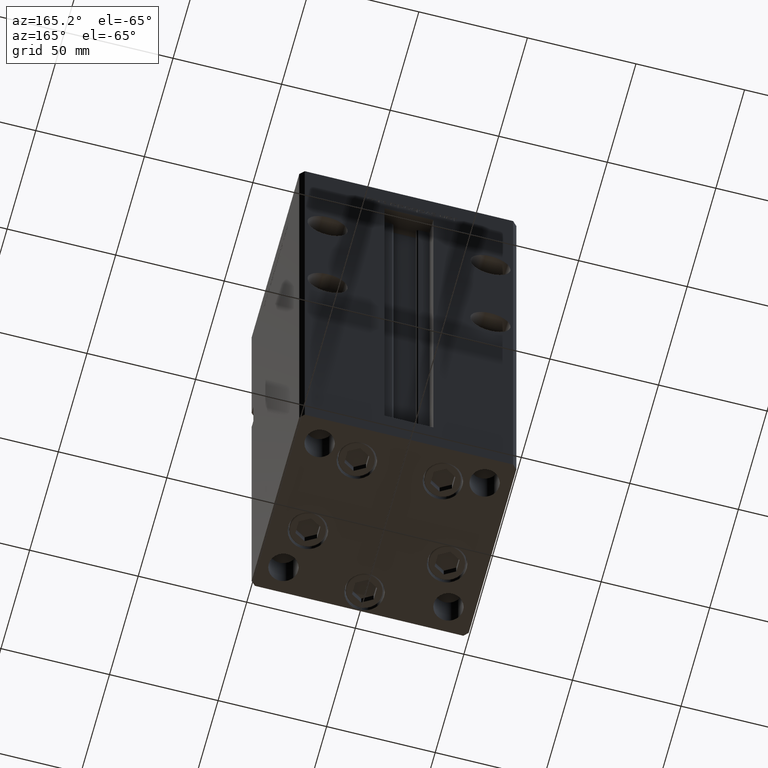
[diagram: clean part render]
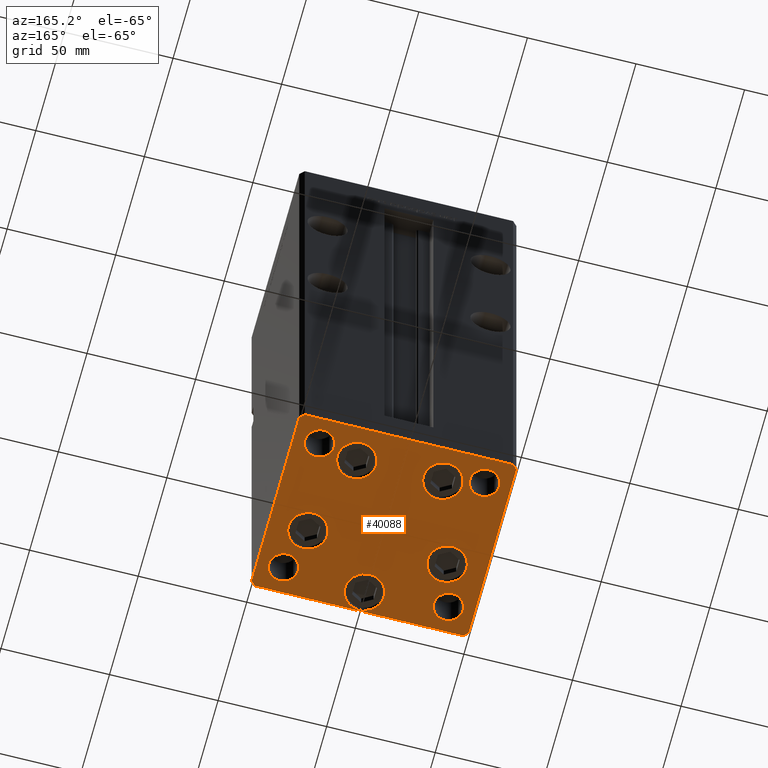
[diagram: same view with one face highlighted and labeled with its STEP entity id]
A machine part, auxiliary view. The second image highlights one B-rep face of the part: STEP entity #40088.
In plain terms, the highlighted planar face has unit normal (0, 0, -1).
Its self-contained STEP definition (entity closure, byte-faithful):
#40 = CARTESIAN_POINT ( 'NONE',  ( -38.00000000000000000, 31.50000000000000000, 0.000000000000000000 ) ) ;
#287 = DIRECTION ( 'NONE',  ( 0.000000000000000000, -0.000000000000000000, -1.000000000000000000 ) ) ;
#337 = VERTEX_POINT ( 'NONE', #47111 ) ;
#1115 = DIRECTION ( 'NONE',  ( 0.000000000000000000, -0.000000000000000000, -1.000000000000000000 ) ) ;
#1201 = AXIS2_PLACEMENT_3D ( 'NONE', #7482, #47867, #48141 ) ;
#1406 = CARTESIAN_POINT ( 'NONE',  ( -50.00000000000000711, 41.49999999999995026, 0.000000000000000000 ) ) ;
#1515 = DIRECTION ( 'NONE',  ( 1.000000000000000000, 0.000000000000000000, 0.000000000000000000 ) ) ;
#2008 = EDGE_CURVE ( 'NONE', #38507, #2152, #26803, .T. ) ;
#2152 = VERTEX_POINT ( 'NONE', #21083 ) ;
#2290 = CARTESIAN_POINT ( 'NONE',  ( 49.99999999999992184, 41.49999999999998579, 0.000000000000000000 ) ) ;
#2665 = EDGE_CURVE ( 'NONE', #52775, #21451, #28418, .T. ) ;
#2859 = AXIS2_PLACEMENT_3D ( 'NONE', #37668, #287, #49887 ) ;
#2884 = VERTEX_POINT ( 'NONE', #6444 ) ;
#3057 = FACE_BOUND ( 'NONE', #12705, .T. ) ;
#3117 = CARTESIAN_POINT ( 'NONE',  ( 41.05550741379015278, -11.33333333333332860, 0.000000000000000000 ) ) ;
#3433 = CARTESIAN_POINT ( 'NONE',  ( -31.25000000000000000, 31.50000000000000000, 0.000000000000000000 ) ) ;
#3553 = LINE ( 'NONE', #20090, #6071 ) ;
#3657 = CIRCLE ( 'NONE', #46042, 9.000000000000001776 ) ;
#3718 = DIRECTION ( 'NONE',  ( 1.000000000000000000, 0.000000000000000000, 0.000000000000000000 ) ) ;
#3827 = CARTESIAN_POINT ( 'NONE',  ( 47.99999999999990763, 43.50000000000000000, 0.000000000000000000 ) ) ;
#3978 = DIRECTION ( 'NONE',  ( -0.000000000000000000, 0.000000000000000000, 1.000000000000000000 ) ) ;
#4534 = VERTEX_POINT ( 'NONE', #3117 ) ;
#4731 = CIRCLE ( 'NONE', #37585, 9.000000000000000000 ) ;
#4793 = CARTESIAN_POINT ( 'NONE',  ( 32.05550741379015278, -11.33333333333333037, 0.000000000000000000 ) ) ;
#5057 = ORIENTED_EDGE ( 'NONE', *, *, #18452, .F. ) ;
#5422 = VERTEX_POINT ( 'NONE', #26094 ) ;
#5626 = CIRCLE ( 'NONE', #39353, 6.749999999999999112 ) ;
#6071 = VECTOR ( 'NONE', #16298, 1000.000000000000114 ) ;
#6444 = CARTESIAN_POINT ( 'NONE',  ( 31.25000000000000000, 31.49999999999999289, 0.000000000000000000 ) ) ;
#6500 = DIRECTION ( 'NONE',  ( -0.7071067811865463515, -0.7071067811865487940, 0.000000000000000000 ) ) ;
#6657 = VERTEX_POINT ( 'NONE', #16198 ) ;
#6847 = CARTESIAN_POINT ( 'NONE',  ( -32.05550741379015278, -11.33333333333333925, 0.000000000000000000 ) ) ;
#6870 = FACE_BOUND ( 'NONE', #50436, .T. ) ;
#7482 = CARTESIAN_POINT ( 'NONE',  ( -37.99999999999999289, -31.50000000000000000, 0.000000000000000000 ) ) ;
#7592 = VECTOR ( 'NONE', #1515, 1000.000000000000000 ) ;
#7678 = VERTEX_POINT ( 'NONE', #32908 ) ;
#8123 = LINE ( 'NONE', #41170, #34148 ) ;
#8144 = ORIENTED_EDGE ( 'NONE', *, *, #42910, .T. ) ;
#8194 = VERTEX_POINT ( 'NONE', #40847 ) ;
#8284 = AXIS2_PLACEMENT_3D ( 'NONE', #23487, #15368, #40008 ) ;
#8289 = CARTESIAN_POINT ( 'NONE',  ( 44.75000000000000000, -31.49999999999999289, 0.000000000000000000 ) ) ;
#8741 = AXIS2_PLACEMENT_3D ( 'NONE', #22712, #31652, #3718 ) ;
#8908 = DIRECTION ( 'NONE',  ( 0.000000000000000000, -0.000000000000000000, -1.000000000000000000 ) ) ;
#9377 = LINE ( 'NONE', #25891, #7592 ) ;
#10917 = EDGE_CURVE ( 'NONE', #15743, #13555, #4731, .T. ) ;
#11151 = EDGE_CURVE ( 'NONE', #2884, #26305, #33289, .T. ) ;
#11228 = DIRECTION ( 'NONE',  ( -0.7071067811865474617, 0.7071067811865474617, 0.000000000000000000 ) ) ;
#11455 = FACE_BOUND ( 'NONE', #13708, .T. ) ;
#12105 = ORIENTED_EDGE ( 'NONE', *, *, #30445, .T. ) ;
#12137 = ORIENTED_EDGE ( 'NONE', *, *, #40388, .T. ) ;
#12187 = DIRECTION ( 'NONE',  ( 1.000000000000000000, 0.000000000000000000, 0.000000000000000000 ) ) ;
#12483 = VERTEX_POINT ( 'NONE', #8289 ) ;
#12563 = DIRECTION ( 'NONE',  ( 0.000000000000000000, -0.000000000000000000, -1.000000000000000000 ) ) ;
#12660 = DIRECTION ( 'NONE',  ( 0.000000000000000000, -0.000000000000000000, -1.000000000000000000 ) ) ;
#12705 = EDGE_LOOP ( 'NONE', ( #46309, #37851 ) ) ;
#12813 = EDGE_LOOP ( 'NONE', ( #28735, #22546 ) ) ;
#12996 = CIRCLE ( 'NONE', #36382, 9.000000000000000000 ) ;
#13240 = EDGE_CURVE ( 'NONE', #26305, #2884, #37663, .T. ) ;
#13338 = LINE ( 'NONE', #1406, #44057 ) ;
#13555 = VERTEX_POINT ( 'NONE', #47280 ) ;
#13708 = EDGE_LOOP ( 'NONE', ( #37698, #34829 ) ) ;
#13727 = AXIS2_PLACEMENT_3D ( 'NONE', #52322, #36030, #32689 ) ;
#14137 = CARTESIAN_POINT ( 'NONE',  ( -32.05550741379015278, -11.33333333333333925, 0.000000000000000000 ) ) ;
#15149 = ORIENTED_EDGE ( 'NONE', *, *, #20273, .T. ) ;
#15264 = FACE_OUTER_BOUND ( 'NONE', #53142, .T. ) ;
#15368 = DIRECTION ( 'NONE',  ( -0.000000000000000000, 0.000000000000000000, 1.000000000000000000 ) ) ;
#15528 = PLANE ( 'NONE',  #24388 ) ;
#15743 = VERTEX_POINT ( 'NONE', #41372 ) ;
#16198 = CARTESIAN_POINT ( 'NONE',  ( -23.05550741379014923, -11.33333333333333748, 0.000000000000000000 ) ) ;
#16298 = DIRECTION ( 'NONE',  ( 0.7071067811865474617, -0.7071067811865474617, 0.000000000000000000 ) ) ;
#16573 = DIRECTION ( 'NONE',  ( -0.000000000000000000, 0.000000000000000000, 1.000000000000000000 ) ) ;
#16603 = EDGE_CURVE ( 'NONE', #21451, #26193, #29866, .T. ) ;
#16721 = DIRECTION ( 'NONE',  ( 1.000000000000000000, 0.000000000000000000, 0.000000000000000000 ) ) ;
#17111 = DIRECTION ( 'NONE',  ( 1.000000000000000000, 0.000000000000000000, 0.000000000000000000 ) ) ;
#17140 = CIRCLE ( 'NONE', #41384, 8.999999999999998224 ) ;
#17460 = EDGE_CURVE ( 'NONE', #13555, #15743, #37823, .T. ) ;
#17515 = EDGE_LOOP ( 'NONE', ( #25942, #12137 ) ) ;
#17837 = VECTOR ( 'NONE', #6500, 1000.000000000000000 ) ;
#17936 = DIRECTION ( 'NONE',  ( 1.000000000000000000, 0.000000000000000000, 0.000000000000000000 ) ) ;
#18216 = CARTESIAN_POINT ( 'NONE',  ( 50.00000000000000000, -41.49999999999999289, 0.000000000000000000 ) ) ;
#18452 = EDGE_CURVE ( 'NONE', #43518, #5422, #42149, .T. ) ;
#18459 = EDGE_CURVE ( 'NONE', #47187, #12483, #20550, .T. ) ;
#19186 = EDGE_CURVE ( 'NONE', #41039, #52775, #9377, .T. ) ;
#19589 = FACE_BOUND ( 'NONE', #34648, .T. ) ;
#19894 = CARTESIAN_POINT ( 'NONE',  ( 10.82068048781373193, 27.62500000000000000, 0.000000000000000000 ) ) ;
#20090 = CARTESIAN_POINT ( 'NONE',  ( -50.00000000000000000, -41.50000000000000000, 0.000000000000000000 ) ) ;
#20273 = EDGE_CURVE ( 'NONE', #4534, #38251, #42219, .T. ) ;
#20511 = DIRECTION ( 'NONE',  ( 1.000000000000000000, 0.000000000000000000, 0.000000000000000000 ) ) ;
#20550 = CIRCLE ( 'NONE', #45645, 6.749999999999999112 ) ;
#20591 = CARTESIAN_POINT ( 'NONE',  ( 9.000000000000003553, -34.00000000000000000, 0.000000000000000000 ) ) ;
#20732 = VECTOR ( 'NONE', #11228, 1000.000000000000114 ) ;
#21083 = CARTESIAN_POINT ( 'NONE',  ( -50.00000000000000711, 41.49999999999995026, 0.000000000000000000 ) ) ;
#21451 = VERTEX_POINT ( 'NONE', #28120 ) ;
#21473 = AXIS2_PLACEMENT_3D ( 'NONE', #4793, #12660, #16721 ) ;
#21493 = CARTESIAN_POINT ( 'NONE',  ( -19.82068048781373903, 27.62499999999999645, 0.000000000000000000 ) ) ;
#22193 = VECTOR ( 'NONE', #34717, 1000.000000000000000 ) ;
#22414 = ORIENTED_EDGE ( 'NONE', *, *, #19186, .T. ) ;
#22546 = ORIENTED_EDGE ( 'NONE', *, *, #36976, .T. ) ;
#22662 = EDGE_CURVE ( 'NONE', #12483, #47187, #24995, .T. ) ;
#22712 = CARTESIAN_POINT ( 'NONE',  ( 19.82068048781373193, 27.62500000000000000, 0.000000000000000000 ) ) ;
#23385 = FACE_BOUND ( 'NONE', #47572, .T. ) ;
#23487 = CARTESIAN_POINT ( 'NONE',  ( 38.00000000000000000, 31.49999999999999289, 0.000000000000000000 ) ) ;
#23608 = ORIENTED_EDGE ( 'NONE', *, *, #18459, .T. ) ;
#24094 = CIRCLE ( 'NONE', #31018, 6.749999999999999112 ) ;
#24196 = ORIENTED_EDGE ( 'NONE', *, *, #13240, .F. ) ;
#24388 = AXIS2_PLACEMENT_3D ( 'NONE', #27969, #32044, #44497 ) ;
#24576 = CIRCLE ( 'NONE', #1201, 6.749999999999999112 ) ;
#24995 = CIRCLE ( 'NONE', #13727, 6.749999999999999112 ) ;
#25061 = EDGE_CURVE ( 'NONE', #40167, #30050, #17140, .T. ) ;
#25101 = DIRECTION ( 'NONE',  ( 0.000000000000000000, -0.000000000000000000, -1.000000000000000000 ) ) ;
#25177 = DIRECTION ( 'NONE',  ( -0.000000000000000000, 0.000000000000000000, 1.000000000000000000 ) ) ;
#25266 = ORIENTED_EDGE ( 'NONE', *, *, #16603, .T. ) ;
#25891 = CARTESIAN_POINT ( 'NONE',  ( -47.99999999999999289, -43.50000000000001421, 0.000000000000000000 ) ) ;
#25942 = ORIENTED_EDGE ( 'NONE', *, *, #30578, .T. ) ;
#26094 = CARTESIAN_POINT ( 'NONE',  ( -44.75000000000000000, 31.50000000000000000, 0.000000000000000000 ) ) ;
#26190 = EDGE_CURVE ( 'NONE', #8194, #337, #24094, .T. ) ;
#26193 = VERTEX_POINT ( 'NONE', #40436 ) ;
#26305 = VERTEX_POINT ( 'NONE', #45576 ) ;
#26803 = LINE ( 'NONE', #43334, #17837 ) ;
#27022 = CARTESIAN_POINT ( 'NONE',  ( -48.00000000000000711, 43.49999999999996447, 0.000000000000000000 ) ) ;
#27179 = DIRECTION ( 'NONE',  ( 0.000000000000000000, -0.000000000000000000, -1.000000000000000000 ) ) ;
#27448 = FACE_BOUND ( 'NONE', #45133, .T. ) ;
#27622 = CARTESIAN_POINT ( 'NONE',  ( 47.99999999999999289, -43.50000000000001421, 0.000000000000000000 ) ) ;
#27969 = CARTESIAN_POINT ( 'NONE',  ( 0.000000000000000000, 0.000000000000000000, 0.000000000000000000 ) ) ;
#28036 = EDGE_CURVE ( 'NONE', #2152, #32943, #13338, .T. ) ;
#28120 = CARTESIAN_POINT ( 'NONE',  ( 50.00000000000000000, -41.49999999999999289, 0.000000000000000000 ) ) ;
#28360 = CARTESIAN_POINT ( 'NONE',  ( 38.00000000000000000, 31.49999999999999289, 0.000000000000000000 ) ) ;
#28418 = LINE ( 'NONE', #27622, #42923 ) ;
#28542 = DIRECTION ( 'NONE',  ( 0.000000000000000000, -0.000000000000000000, -1.000000000000000000 ) ) ;
#28735 = ORIENTED_EDGE ( 'NONE', *, *, #26190, .T. ) ;
#28968 = EDGE_CURVE ( 'NONE', #26193, #49807, #47812, .T. ) ;
#29708 = EDGE_LOOP ( 'NONE', ( #47028, #34150 ) ) ;
#29866 = LINE ( 'NONE', #18216, #22193 ) ;
#30050 = VERTEX_POINT ( 'NONE', #19894 ) ;
#30253 = ORIENTED_EDGE ( 'NONE', *, *, #51769, .F. ) ;
#30445 = EDGE_CURVE ( 'NONE', #32943, #41039, #3553, .T. ) ;
#30578 = EDGE_CURVE ( 'NONE', #31804, #51744, #12996, .T. ) ;
#31018 = AXIS2_PLACEMENT_3D ( 'NONE', #52670, #27179, #44766 ) ;
#31652 = DIRECTION ( 'NONE',  ( 0.000000000000000000, -0.000000000000000000, -1.000000000000000000 ) ) ;
#31804 = VERTEX_POINT ( 'NONE', #46545 ) ;
#32044 = DIRECTION ( 'NONE',  ( -0.000000000000000000, 0.000000000000000000, 1.000000000000000000 ) ) ;
#32689 = DIRECTION ( 'NONE',  ( 1.000000000000000000, 0.000000000000000000, 0.000000000000000000 ) ) ;
#32739 = EDGE_CURVE ( 'NONE', #30050, #40167, #49390, .T. ) ;
#32908 = CARTESIAN_POINT ( 'NONE',  ( -41.05550741379015278, -11.33333333333333925, 0.000000000000000000 ) ) ;
#32943 = VERTEX_POINT ( 'NONE', #45962 ) ;
#33081 = CARTESIAN_POINT ( 'NONE',  ( 38.00000000000000000, -31.49999999999999289, 0.000000000000000000 ) ) ;
#33289 = CIRCLE ( 'NONE', #40225, 6.749999999999999112 ) ;
#33906 = CARTESIAN_POINT ( 'NONE',  ( -47.99999999999999289, -43.50000000000001421, 0.000000000000000000 ) ) ;
#34148 = VECTOR ( 'NONE', #45502, 1000.000000000000000 ) ;
#34150 = ORIENTED_EDGE ( 'NONE', *, *, #17460, .T. ) ;
#34648 = EDGE_LOOP ( 'NONE', ( #24196, #50549 ) ) ;
#34685 = CARTESIAN_POINT ( 'NONE',  ( 4.163799117101000559E-15, -34.00000000000000000, 0.000000000000000000 ) ) ;
#34717 = DIRECTION ( 'NONE',  ( -1.003213576468515193E-15, 1.000000000000000000, 0.000000000000000000 ) ) ;
#34829 = ORIENTED_EDGE ( 'NONE', *, *, #41162, .T. ) ;
#34875 = DIRECTION ( 'NONE',  ( 1.000000000000000000, 0.000000000000000000, 0.000000000000000000 ) ) ;
#35818 = DIRECTION ( 'NONE',  ( 0.000000000000000000, -0.000000000000000000, -1.000000000000000000 ) ) ;
#36030 = DIRECTION ( 'NONE',  ( 0.000000000000000000, -0.000000000000000000, -1.000000000000000000 ) ) ;
#36081 = ORIENTED_EDGE ( 'NONE', *, *, #28968, .T. ) ;
#36107 = ORIENTED_EDGE ( 'NONE', *, *, #51876, .T. ) ;
#36108 = FACE_BOUND ( 'NONE', #12813, .T. ) ;
#36382 = AXIS2_PLACEMENT_3D ( 'NONE', #37196, #28542, #52959 ) ;
#36557 = CARTESIAN_POINT ( 'NONE',  ( -38.00000000000000000, 31.50000000000000000, 0.000000000000000000 ) ) ;
#36976 = EDGE_CURVE ( 'NONE', #337, #8194, #24576, .T. ) ;
#37162 = CARTESIAN_POINT ( 'NONE',  ( 28.82068048781372838, 27.62500000000000000, 0.000000000000000000 ) ) ;
#37196 = CARTESIAN_POINT ( 'NONE',  ( 4.163799117101000559E-15, -34.00000000000000000, 0.000000000000000000 ) ) ;
#37488 = CIRCLE ( 'NONE', #48761, 9.000000000000001776 ) ;
#37585 = AXIS2_PLACEMENT_3D ( 'NONE', #42202, #8908, #34875 ) ;
#37663 = CIRCLE ( 'NONE', #8284, 6.749999999999999112 ) ;
#37668 = CARTESIAN_POINT ( 'NONE',  ( 32.05550741379015278, -11.33333333333333037, 0.000000000000000000 ) ) ;
#37698 = ORIENTED_EDGE ( 'NONE', *, *, #48733, .T. ) ;
#37817 = DIRECTION ( 'NONE',  ( 1.000000000000000000, 0.000000000000000000, 0.000000000000000000 ) ) ;
#37823 = CIRCLE ( 'NONE', #43001, 9.000000000000000000 ) ;
#37851 = ORIENTED_EDGE ( 'NONE', *, *, #25061, .T. ) ;
#38244 = DIRECTION ( 'NONE',  ( 8.360113137237628665E-17, -1.000000000000000000, 0.000000000000000000 ) ) ;
#38251 = VERTEX_POINT ( 'NONE', #47181 ) ;
#38507 = VERTEX_POINT ( 'NONE', #27022 ) ;
#39353 = AXIS2_PLACEMENT_3D ( 'NONE', #36557, #25177, #12187 ) ;
#40008 = DIRECTION ( 'NONE',  ( 1.000000000000000000, 0.000000000000000000, 0.000000000000000000 ) ) ;
#40014 = AXIS2_PLACEMENT_3D ( 'NONE', #34685, #1115, #51248 ) ;
#40088 = ADVANCED_FACE ( 'NONE', ( #52131, #3057, #27448, #43978, #11455, #19589, #6870, #23385, #15264, #36108 ), #15528, .T. ) ;
#40167 = VERTEX_POINT ( 'NONE', #37162 ) ;
#40225 = AXIS2_PLACEMENT_3D ( 'NONE', #28360, #3978, #20511 ) ;
#40388 = EDGE_CURVE ( 'NONE', #51744, #31804, #42574, .T. ) ;
#40436 = CARTESIAN_POINT ( 'NONE',  ( 49.99999999999992184, 41.49999999999998579, 0.000000000000000000 ) ) ;
#40578 = ORIENTED_EDGE ( 'NONE', *, *, #28036, .T. ) ;
#40847 = CARTESIAN_POINT ( 'NONE',  ( -31.24999999999999289, -31.50000000000000000, 0.000000000000000000 ) ) ;
#41039 = VERTEX_POINT ( 'NONE', #33906 ) ;
#41162 = EDGE_CURVE ( 'NONE', #6657, #7678, #3657, .T. ) ;
#41170 = CARTESIAN_POINT ( 'NONE',  ( 47.99999999999990763, 43.50000000000000000, 0.000000000000000000 ) ) ;
#41372 = CARTESIAN_POINT ( 'NONE',  ( -28.82068048781373548, 27.62499999999999645, 0.000000000000000000 ) ) ;
#41384 = AXIS2_PLACEMENT_3D ( 'NONE', #42144, #25101, #37817 ) ;
#41804 = DIRECTION ( 'NONE',  ( 1.000000000000000000, 0.000000000000000000, 0.000000000000000000 ) ) ;
#42144 = CARTESIAN_POINT ( 'NONE',  ( 19.82068048781373193, 27.62500000000000000, 0.000000000000000000 ) ) ;
#42149 = CIRCLE ( 'NONE', #49988, 6.749999999999999112 ) ;
#42202 = CARTESIAN_POINT ( 'NONE',  ( -19.82068048781373903, 27.62499999999999645, 0.000000000000000000 ) ) ;
#42219 = CIRCLE ( 'NONE', #21473, 9.000000000000001776 ) ;
#42440 = CARTESIAN_POINT ( 'NONE',  ( 47.99999999999999289, -43.50000000000001421, 0.000000000000000000 ) ) ;
#42574 = CIRCLE ( 'NONE', #40014, 9.000000000000000000 ) ;
#42910 = EDGE_CURVE ( 'NONE', #38251, #4534, #51330, .T. ) ;
#42923 = VECTOR ( 'NONE', #48490, 1000.000000000000000 ) ;
#43001 = AXIS2_PLACEMENT_3D ( 'NONE', #21493, #12563, #41804 ) ;
#43140 = ORIENTED_EDGE ( 'NONE', *, *, #22662, .T. ) ;
#43334 = CARTESIAN_POINT ( 'NONE',  ( -48.00000000000000711, 43.49999999999996447, 0.000000000000000000 ) ) ;
#43518 = VERTEX_POINT ( 'NONE', #3433 ) ;
#43978 = FACE_BOUND ( 'NONE', #17515, .T. ) ;
#44057 = VECTOR ( 'NONE', #38244, 1000.000000000000000 ) ;
#44474 = DIRECTION ( 'NONE',  ( 1.000000000000000000, 0.000000000000000000, 0.000000000000000000 ) ) ;
#44497 = DIRECTION ( 'NONE',  ( 1.000000000000000000, 0.000000000000000000, 0.000000000000000000 ) ) ;
#44766 = DIRECTION ( 'NONE',  ( 1.000000000000000000, 0.000000000000000000, 0.000000000000000000 ) ) ;
#44838 = ORIENTED_EDGE ( 'NONE', *, *, #2665, .T. ) ;
#45133 = EDGE_LOOP ( 'NONE', ( #8144, #15149 ) ) ;
#45502 = DIRECTION ( 'NONE',  ( -1.000000000000000000, -3.614007241618350743E-16, 0.000000000000000000 ) ) ;
#45559 = DIRECTION ( 'NONE',  ( 0.000000000000000000, -0.000000000000000000, -1.000000000000000000 ) ) ;
#45576 = CARTESIAN_POINT ( 'NONE',  ( 44.75000000000000000, 31.49999999999999289, 0.000000000000000000 ) ) ;
#45645 = AXIS2_PLACEMENT_3D ( 'NONE', #33081, #45559, #50171 ) ;
#45962 = CARTESIAN_POINT ( 'NONE',  ( -50.00000000000000000, -41.50000000000000000, 0.000000000000000000 ) ) ;
#46042 = AXIS2_PLACEMENT_3D ( 'NONE', #14137, #46913, #17936 ) ;
#46309 = ORIENTED_EDGE ( 'NONE', *, *, #32739, .T. ) ;
#46545 = CARTESIAN_POINT ( 'NONE',  ( -8.999999999999996447, -34.00000000000000000, 0.000000000000000000 ) ) ;
#46913 = DIRECTION ( 'NONE',  ( 0.000000000000000000, -0.000000000000000000, -1.000000000000000000 ) ) ;
#47028 = ORIENTED_EDGE ( 'NONE', *, *, #10917, .T. ) ;
#47111 = CARTESIAN_POINT ( 'NONE',  ( -44.74999999999999289, -31.50000000000000000, 0.000000000000000000 ) ) ;
#47181 = CARTESIAN_POINT ( 'NONE',  ( 23.05550741379014923, -11.33333333333333037, 0.000000000000000000 ) ) ;
#47187 = VERTEX_POINT ( 'NONE', #49205 ) ;
#47280 = CARTESIAN_POINT ( 'NONE',  ( -10.82068048781373903, 27.62499999999999645, 0.000000000000000000 ) ) ;
#47572 = EDGE_LOOP ( 'NONE', ( #5057, #30253 ) ) ;
#47812 = LINE ( 'NONE', #2290, #20732 ) ;
#47867 = DIRECTION ( 'NONE',  ( 0.000000000000000000, -0.000000000000000000, -1.000000000000000000 ) ) ;
#48140 = ORIENTED_EDGE ( 'NONE', *, *, #2008, .T. ) ;
#48141 = DIRECTION ( 'NONE',  ( 1.000000000000000000, 0.000000000000000000, 0.000000000000000000 ) ) ;
#48490 = DIRECTION ( 'NONE',  ( 0.7071067811865463515, 0.7071067811865487940, 0.000000000000000000 ) ) ;
#48733 = EDGE_CURVE ( 'NONE', #7678, #6657, #37488, .T. ) ;
#48761 = AXIS2_PLACEMENT_3D ( 'NONE', #6847, #35818, #44474 ) ;
#49205 = CARTESIAN_POINT ( 'NONE',  ( 31.25000000000000000, -31.49999999999999289, 0.000000000000000000 ) ) ;
#49390 = CIRCLE ( 'NONE', #8741, 8.999999999999998224 ) ;
#49807 = VERTEX_POINT ( 'NONE', #3827 ) ;
#49887 = DIRECTION ( 'NONE',  ( 1.000000000000000000, 0.000000000000000000, 0.000000000000000000 ) ) ;
#49988 = AXIS2_PLACEMENT_3D ( 'NONE', #40, #16573, #17111 ) ;
#50171 = DIRECTION ( 'NONE',  ( 1.000000000000000000, 0.000000000000000000, 0.000000000000000000 ) ) ;
#50436 = EDGE_LOOP ( 'NONE', ( #43140, #23608 ) ) ;
#50549 = ORIENTED_EDGE ( 'NONE', *, *, #11151, .F. ) ;
#51248 = DIRECTION ( 'NONE',  ( 1.000000000000000000, 0.000000000000000000, 0.000000000000000000 ) ) ;
#51330 = CIRCLE ( 'NONE', #2859, 9.000000000000001776 ) ;
#51744 = VERTEX_POINT ( 'NONE', #20591 ) ;
#51769 = EDGE_CURVE ( 'NONE', #5422, #43518, #5626, .T. ) ;
#51876 = EDGE_CURVE ( 'NONE', #49807, #38507, #8123, .T. ) ;
#52131 = FACE_BOUND ( 'NONE', #29708, .T. ) ;
#52322 = CARTESIAN_POINT ( 'NONE',  ( 38.00000000000000000, -31.49999999999999289, 0.000000000000000000 ) ) ;
#52670 = CARTESIAN_POINT ( 'NONE',  ( -37.99999999999999289, -31.50000000000000000, 0.000000000000000000 ) ) ;
#52775 = VERTEX_POINT ( 'NONE', #42440 ) ;
#52959 = DIRECTION ( 'NONE',  ( 1.000000000000000000, 0.000000000000000000, 0.000000000000000000 ) ) ;
#53142 = EDGE_LOOP ( 'NONE', ( #12105, #22414, #44838, #25266, #36081, #36107, #48140, #40578 ) ) ;